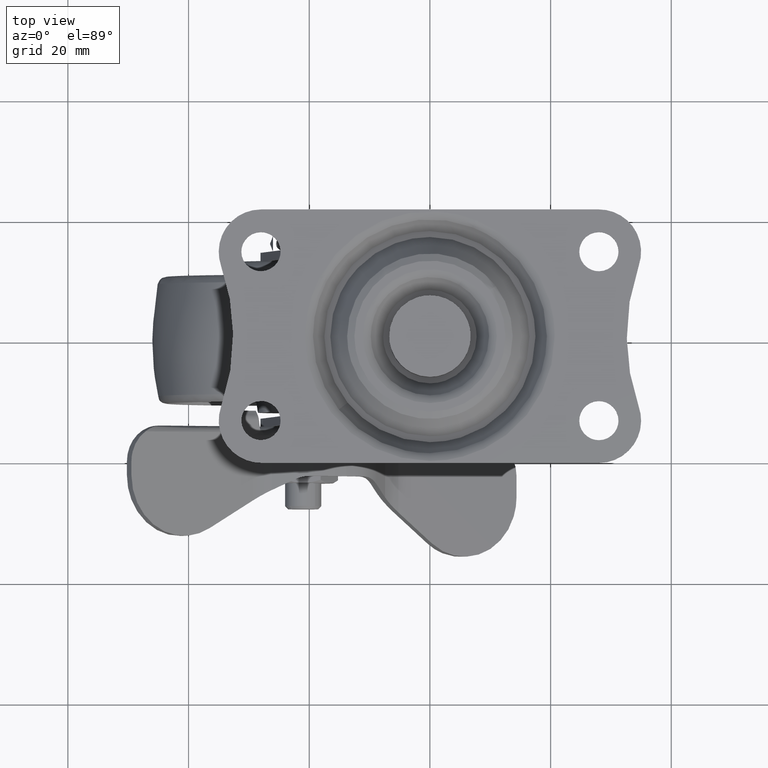
[diagram: clean part render]
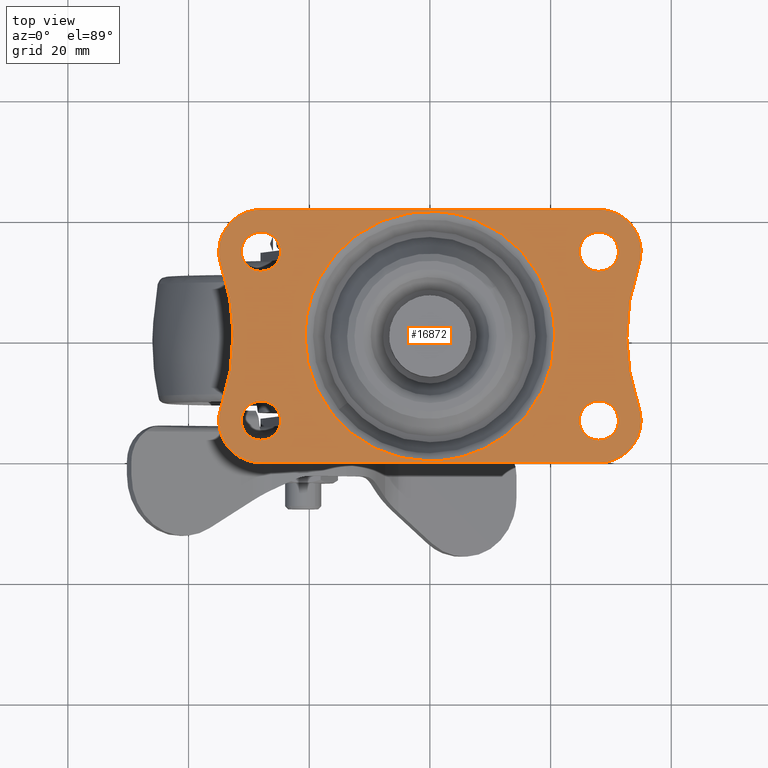
[diagram: same view with one face highlighted and labeled with its STEP entity id]
A machine part, top view. The second image highlights one B-rep face of the part: STEP entity #16872.
In plain terms, the highlighted face is a freeform B-spline surface patch.
Its self-contained STEP definition (entity closure, byte-faithful):
#10269=CARTESIAN_POINT('',(-30.098661757378149,16.481556130268299,1.499999999999946));
#10270=VERTEX_POINT('',#10269);
#10276=CARTESIAN_POINT('',(-31.249999800000001,14.0,1.499999999999946));
#10277=VERTEX_POINT('',#10276);
#10278=CARTESIAN_POINT('',(-30.098661757378149,16.481556130268299,1.499999999999946));
#10279=CARTESIAN_POINT('',(-30.289577182527641,16.320145751765470,1.499999999999946));
#10280=CARTESIAN_POINT('',(-30.674452516521139,15.909815945536870,1.499999999999945));
#10281=CARTESIAN_POINT('',(-31.126645519932929,15.073445750500831,1.499999999999943));
#10282=CARTESIAN_POINT('',(-31.250235581809321,14.382381212408839,1.499999999999948));
#10283=CARTESIAN_POINT('',(-31.249999800000001,14.0,1.499999999999946));
#10284=B_SPLINE_CURVE_WITH_KNOTS('',3,(#10278,#10279,#10280,#10281,#10282,#10283),.UNSPECIFIED.,.F.,.U.,(4,1,1,4),(0.000000054423420,0.750026321650373,1.676517444753924,2.823627086491031),.UNSPECIFIED.);
#10285=EDGE_CURVE('',#10270,#10277,#10284,.T.);
#10287=CARTESIAN_POINT('',(-27.999997940924779,10.750000200000651,1.499999999999946));
#10288=VERTEX_POINT('',#10287);
#10289=CARTESIAN_POINT('',(-31.249999800000001,14.0,1.499999999999946));
#10290=CARTESIAN_POINT('',(-31.250213411659860,13.654312593257419,1.499999999999945));
#10291=CARTESIAN_POINT('',(-31.168603753212889,13.149258355041161,1.499999999999949));
#10292=CARTESIAN_POINT('',(-30.893084863574039,12.484194795442169,1.499999999999946));
#10293=CARTESIAN_POINT('',(-30.578644659373520,11.987597425052529,1.499999999999945));
#10294=CARTESIAN_POINT('',(-30.136500792960529,11.523210283037390,1.499999999999947));
#10295=CARTESIAN_POINT('',(-29.612253616706070,11.153992291692401,1.499999999999946));
#10296=CARTESIAN_POINT('',(-28.903921136315340,10.839957306355981,1.499999999999946));
#10297=CARTESIAN_POINT('',(-28.345678394126999,10.749810213535600,1.499999999999946));
#10298=CARTESIAN_POINT('',(-27.999997940924779,10.750000200000651,1.499999999999946));
#10299=B_SPLINE_CURVE_WITH_KNOTS('',3,(#10289,#10290,#10291,#10292,#10293,#10294,#10295,#10296,#10297,#10298),.UNSPECIFIED.,.F.,.U.,(4,1,1,1,1,1,1,4),(0.000000087005333,1.036990326245083,1.515618312055995,2.153791714684053,2.791894715985495,3.430051564259903,4.068226777025982,5.105217015478970),.UNSPECIFIED.);
#10300=EDGE_CURVE('',#10277,#10288,#10299,.T.);
#10302=CARTESIAN_POINT('',(-24.750000199999999,14.0,1.499999999999946));
#10303=VERTEX_POINT('',#10302);
#10304=CARTESIAN_POINT('',(-27.999997940924779,10.750000200000651,1.499999999999946));
#10305=CARTESIAN_POINT('',(-27.654316308057751,10.749811401326840,1.499999999999947));
#10306=CARTESIAN_POINT('',(-27.096075418379851,10.839956518735020,1.499999999999944));
#10307=CARTESIAN_POINT('',(-26.387743192730952,11.153993074684790,1.499999999999951));
#10308=CARTESIAN_POINT('',(-25.863495983017959,11.523209752207400,1.499999999999941));
#10309=CARTESIAN_POINT('',(-25.421354199006210,11.987598052868011,1.499999999999949));
#10310=CARTESIAN_POINT('',(-25.106918210517598,12.484195698214609,1.499999999999946));
#10311=CARTESIAN_POINT('',(-24.831369771708101,13.149255147359760,1.499999999999953));
#10312=CARTESIAN_POINT('',(-24.749815336275020,13.654316176548811,1.499999999999938));
#10313=CARTESIAN_POINT('',(-24.750000199999999,14.0,1.499999999999946));
#10314=B_SPLINE_CURVE_WITH_KNOTS('',3,(#10304,#10305,#10306,#10307,#10308,#10309,#10310,#10311,#10312,#10313),.UNSPECIFIED.,.F.,.U.,(4,1,1,1,1,1,1,4),(0.000000089825204,1.036989856927361,1.675164779641794,2.313321336359128,2.951424046667823,3.589597158345651,4.068224926475018,5.105214694363415),.UNSPECIFIED.);
#10315=EDGE_CURVE('',#10288,#10303,#10314,.T.);
#10317=CARTESIAN_POINT('',(-25.642533912545861,16.237151985246431,1.499999999999946));
#10318=VERTEX_POINT('',#10317);
#10319=CARTESIAN_POINT('',(-24.750000199999999,14.0,1.499999999999946));
#10320=CARTESIAN_POINT('',(-24.749833953209141,14.334161639307720,1.499999999999947));
#10321=CARTESIAN_POINT('',(-24.834010635065660,14.873799582422521,1.499999999999947));
#10322=CARTESIAN_POINT('',(-25.158315578150809,15.633700887747439,1.499999999999944));
#10323=CARTESIAN_POINT('',(-25.447846849363120,16.032119372609241,1.499999999999949));
#10324=CARTESIAN_POINT('',(-25.642533912545861,16.237151985246431,1.499999999999946));
#10325=B_SPLINE_CURVE_WITH_KNOTS('',3,(#10319,#10320,#10321,#10322,#10323,#10324),.UNSPECIFIED.,.F.,.U.,(4,1,1,4),(0.000000029990939,1.002438273369224,1.619299687535740,2.467516888484169),.UNSPECIFIED.);
#10326=EDGE_CURVE('',#10303,#10318,#10325,.T.);
#10411=CARTESIAN_POINT('',(-28.000002059075200,17.249999799999340,1.499999999999946));
#10412=VERTEX_POINT('',#10411);
#10413=CARTESIAN_POINT('',(-25.642533912545861,16.237151985246431,1.499999999999946));
#10414=CARTESIAN_POINT('',(-25.850505642591930,16.456465313309121,1.499999999999945));
#10415=CARTESIAN_POINT('',(-26.219671023482139,16.749946695815439,1.499999999999948));
#10416=CARTESIAN_POINT('',(-27.011140322882799,17.138725367397349,1.499999999999945));
#10417=CARTESIAN_POINT('',(-27.587787815600748,17.250430855578468,1.499999999999943));
#10418=CARTESIAN_POINT('',(-28.000002059075200,17.249999799999340,1.499999999999946));
#10419=B_SPLINE_CURVE_WITH_KNOTS('',3,(#10413,#10414,#10415,#10416,#10417,#10418),.UNSPECIFIED.,.F.,.U.,(4,1,1,4),(0.000000023110451,0.906710101537733,1.401278173785362,2.637701047497904),.UNSPECIFIED.);
#10420=EDGE_CURVE('',#10318,#10412,#10419,.T.);
#10422=CARTESIAN_POINT('',(-28.000002059075200,17.249999799999340,1.499999999999946));
#10423=CARTESIAN_POINT('',(-28.213890449556139,17.250021659125569,1.499999999999944));
#10424=CARTESIAN_POINT('',(-28.665425187127092,17.205277153512942,1.499999999999949));
#10425=CARTESIAN_POINT('',(-29.394724745741989,16.974042725437720,1.499999999999944));
#10426=CARTESIAN_POINT('',(-29.862817362651999,16.681141635494171,1.499999999999946));
#10427=CARTESIAN_POINT('',(-30.098661757378149,16.481556130268299,1.499999999999946));
#10428=B_SPLINE_CURVE_WITH_KNOTS('',3,(#10422,#10423,#10424,#10425,#10426,#10427),.UNSPECIFIED.,.F.,.U.,(4,1,1,4),(0.000000032594691,0.641680232447581,1.354643003285986,2.281526419645199),.UNSPECIFIED.);
#10429=EDGE_CURVE('',#10412,#10270,#10428,.T.);
#10474=CARTESIAN_POINT('',(-30.098661757378139,-11.518451869731621,1.499999999999946));
#10475=VERTEX_POINT('',#10474);
#10481=CARTESIAN_POINT('',(-31.249999800000001,-14.000007999999919,1.499999999999946));
#10482=VERTEX_POINT('',#10481);
#10483=CARTESIAN_POINT('',(-30.098661757378139,-11.518451869731621,1.499999999999946));
#10484=CARTESIAN_POINT('',(-30.289586742369892,-11.679858687136569,1.499999999999946));
#10485=CARTESIAN_POINT('',(-30.633884611888639,-12.047021504023400,1.499999999999947));
#10486=CARTESIAN_POINT('',(-31.107006088051609,-12.867981485668230,1.499999999999945));
#10487=CARTESIAN_POINT('',(-31.250522754096970,-13.558719786274899,1.499999999999948));
#10488=CARTESIAN_POINT('',(-31.249999800000001,-14.000007999999919,1.499999999999946));
#10489=B_SPLINE_CURVE_WITH_KNOTS('',3,(#10483,#10484,#10485,#10486,#10487,#10488),.UNSPECIFIED.,.F.,.U.,(4,1,1,4),(0.000000054422037,0.750026321649219,1.500045668860254,2.823627086491030),.UNSPECIFIED.);
#10490=EDGE_CURVE('',#10475,#10482,#10489,.T.);
#10492=CARTESIAN_POINT('',(-27.999997940924779,-17.250007799999260,1.499999999999946));
#10493=VERTEX_POINT('',#10492);
#10494=CARTESIAN_POINT('',(-31.249999800000001,-14.000007999999919,1.499999999999946));
#10495=CARTESIAN_POINT('',(-31.250017637821919,-14.212709140315550,1.499999999999945));
#10496=CARTESIAN_POINT('',(-31.200276527679168,-14.717908306439011,1.499999999999948));
#10497=CARTESIAN_POINT('',(-30.929819252506022,-15.504521439635280,1.499999999999945));
#10498=CARTESIAN_POINT('',(-30.449946439427649,-16.185672235366290,1.499999999999949));
#10499=CARTESIAN_POINT('',(-29.802582655415300,-16.744204374123079,1.499999999999945));
#10500=CARTESIAN_POINT('',(-29.010292310982489,-17.142952453567862,1.499999999999949));
#10501=CARTESIAN_POINT('',(-28.345673533167162,-17.250184360931790,1.499999999999946));
#10502=CARTESIAN_POINT('',(-27.999997940924779,-17.250007799999260,1.499999999999946));
#10503=B_SPLINE_CURVE_WITH_KNOTS('',3,(#10494,#10495,#10496,#10497,#10498,#10499,#10500,#10501,#10502),.UNSPECIFIED.,.F.,.U.,(4,1,1,1,1,1,4),(0.000000087003577,0.638124657561202,1.515618312054764,2.472847482041339,3.110962390248583,4.068226777025538,5.105217015478995),.UNSPECIFIED.);
#10504=EDGE_CURVE('',#10482,#10493,#10503,.T.);
#10506=CARTESIAN_POINT('',(-24.750000199999999,-14.000007999999919,1.499999999999946));
#10507=VERTEX_POINT('',#10506);
#10508=CARTESIAN_POINT('',(-27.999997940924779,-17.250007799999260,1.499999999999946));
#10509=CARTESIAN_POINT('',(-27.654324779743519,-17.250174498512042,1.499999999999947));
#10510=CARTESIAN_POINT('',(-26.989694598158280,-17.142984238106791,1.499999999999944));
#10511=CARTESIAN_POINT('',(-26.197418206327910,-16.744184693498159,1.499999999999950));
#10512=CARTESIAN_POINT('',(-25.631028502236010,-16.255449287576859,1.499999999999938));
#10513=CARTESIAN_POINT('',(-25.236539733628341,-15.749970875931140,1.499999999999955));
#10514=CARTESIAN_POINT('',(-24.864054850948381,-15.010174619736050,1.499999999999941));
#10515=CARTESIAN_POINT('',(-24.749637220908362,-14.398907828496091,1.499999999999948));
#10516=CARTESIAN_POINT('',(-24.750000199999999,-14.000007999999919,1.499999999999946));
#10517=B_SPLINE_CURVE_WITH_KNOTS('',3,(#10508,#10509,#10510,#10511,#10512,#10513,#10514,#10515,#10516),.UNSPECIFIED.,.F.,.U.,(4,1,1,1,1,1,4),(0.000000089826888,1.036989856928397,1.994253808090371,2.632368425048630,3.270503607041905,3.908680750575577,5.105214694363415),.UNSPECIFIED.);
#10518=EDGE_CURVE('',#10493,#10507,#10517,.T.);
#10520=CARTESIAN_POINT('',(-25.642533912545851,-11.762856014753490,1.499999999999946));
#10521=VERTEX_POINT('',#10520);
#10522=CARTESIAN_POINT('',(-24.750000199999999,-14.000007999999919,1.499999999999946));
#10523=CARTESIAN_POINT('',(-24.749833579706259,-13.665847153486490,1.499999999999946));
#10524=CARTESIAN_POINT('',(-24.834011496223638,-13.126208212857231,1.499999999999947));
#10525=CARTESIAN_POINT('',(-25.158316419856121,-12.366306086907290,1.499999999999945));
#10526=CARTESIAN_POINT('',(-25.447846354275221,-11.967889320088570,1.499999999999945));
#10527=CARTESIAN_POINT('',(-25.642533912545851,-11.762856014753490,1.499999999999946));
#10528=B_SPLINE_CURVE_WITH_KNOTS('',3,(#10522,#10523,#10524,#10525,#10526,#10527),.UNSPECIFIED.,.F.,.U.,(4,1,1,4),(0.000000029991112,1.002438273369318,1.619299687535795,2.467516888484159),.UNSPECIFIED.);
#10529=EDGE_CURVE('',#10507,#10521,#10528,.T.);
#10613=CARTESIAN_POINT('',(-28.000002059075200,-10.750008200000570,1.499999999999946));
#10614=VERTEX_POINT('',#10613);
#10615=CARTESIAN_POINT('',(-25.642533912545851,-11.762856014753490,1.499999999999946));
#10616=CARTESIAN_POINT('',(-25.888274972804311,-11.503611668925210,1.499999999999947));
#10617=CARTESIAN_POINT('',(-26.355191532247090,-11.151478215741291,1.499999999999944));
#10618=CARTESIAN_POINT('',(-27.175803291080911,-10.823392204282669,1.499999999999947));
#10619=CARTESIAN_POINT('',(-27.697760787637989,-10.749886670758819,1.499999999999946));
#10620=CARTESIAN_POINT('',(-28.000002059075200,-10.750008200000570,1.499999999999946));
#10621=B_SPLINE_CURVE_WITH_KNOTS('',3,(#10615,#10616,#10617,#10618,#10619,#10620),.UNSPECIFIED.,.F.,.U.,(4,1,1,4),(0.000000023110160,1.071566752672289,1.730990969038262,2.637701047497915),.UNSPECIFIED.);
#10622=EDGE_CURVE('',#10521,#10614,#10621,.T.);
#10624=CARTESIAN_POINT('',(-28.000002059075200,-10.750008200000570,1.499999999999946));
#10625=CARTESIAN_POINT('',(-28.356512367590650,-10.749807794781020,1.499999999999947));
#10626=CARTESIAN_POINT('',(-29.116838494646679,-10.876441013781090,1.499999999999947));
#10627=CARTESIAN_POINT('',(-29.790384794726300,-11.257243185957790,1.499999999999944));
#10628=CARTESIAN_POINT('',(-30.098661757378139,-11.518451869731621,1.499999999999946));
#10629=B_SPLINE_CURVE_WITH_KNOTS('',3,(#10624,#10625,#10626,#10627,#10628),.UNSPECIFIED.,.F.,.U.,(4,1,4),(0.000000032594196,1.069474202612566,2.281526419645196),.UNSPECIFIED.);
#10630=EDGE_CURVE('',#10614,#10475,#10629,.T.);
#10676=CARTESIAN_POINT('',(25.901338242621851,16.481556130268299,1.499999999999946));
#10677=VERTEX_POINT('',#10676);
#10683=CARTESIAN_POINT('',(24.750000199999999,14.0,1.499999999999946));
#10684=VERTEX_POINT('',#10683);
#10685=CARTESIAN_POINT('',(25.901338242621851,16.481556130268299,1.499999999999946));
#10686=CARTESIAN_POINT('',(25.732890947688752,16.339125748626881,1.499999999999948));
#10687=CARTESIAN_POINT('',(25.384101602680250,15.977238748593500,1.499999999999944));
#10688=CARTESIAN_POINT('',(24.899064335299261,15.161457585811190,1.499999999999947));
#10689=CARTESIAN_POINT('',(24.749488781729770,14.441275193830140,1.499999999999951));
#10690=CARTESIAN_POINT('',(24.750000199999999,14.0,1.499999999999946));
#10691=B_SPLINE_CURVE_WITH_KNOTS('',3,(#10685,#10686,#10687,#10688,#10689,#10690),.UNSPECIFIED.,.F.,.U.,(4,1,1,4),(0.000000054425265,0.661787303231042,1.500045668861496,2.823627086491002),.UNSPECIFIED.);
#10692=EDGE_CURVE('',#10677,#10684,#10691,.T.);
#10694=CARTESIAN_POINT('',(28.000002059075229,10.750000200000651,1.499999999999946));
#10695=VERTEX_POINT('',#10694);
#10696=CARTESIAN_POINT('',(24.750000199999999,14.0,1.499999999999946));
#10697=CARTESIAN_POINT('',(24.749814634652282,13.654317282817670,1.499999999999943));
#10698=CARTESIAN_POINT('',(24.831371717560820,13.149252526906251,1.499999999999950));
#10699=CARTESIAN_POINT('',(25.106919946959991,12.484196991566661,1.499999999999943));
#10700=CARTESIAN_POINT('',(25.421355593252031,11.987596439260541,1.499999999999953));
#10701=CARTESIAN_POINT('',(25.863500868566248,11.523208894773919,1.499999999999939));
#10702=CARTESIAN_POINT('',(26.387745234496279,11.153991595141090,1.499999999999956));
#10703=CARTESIAN_POINT('',(27.096082682998318,10.839973795133380,1.499999999999931));
#10704=CARTESIAN_POINT('',(27.654318491992580,10.749790041966550,1.499999999999961));
#10705=CARTESIAN_POINT('',(28.000002059075229,10.750000200000651,1.499999999999946));
#10706=B_SPLINE_CURVE_WITH_KNOTS('',3,(#10696,#10697,#10698,#10699,#10700,#10701,#10702,#10703,#10704,#10705),.UNSPECIFIED.,.F.,.U.,(4,1,1,1,1,1,1,4),(0.000000087003586,1.036990326243745,1.515618312054816,2.153791714683071,2.791894715984703,3.430051564259262,4.068226777025538,5.105217015478991),.UNSPECIFIED.);
#10707=EDGE_CURVE('',#10684,#10695,#10706,.T.);
#10709=CARTESIAN_POINT('',(31.249999800000001,14.0,1.499999999999946));
#10710=VERTEX_POINT('',#10709);
#10711=CARTESIAN_POINT('',(28.000002059075229,10.750000200000651,1.499999999999946));
#10712=CARTESIAN_POINT('',(28.292490253884871,10.749894311593151,1.499999999999945));
#10713=CARTESIAN_POINT('',(28.744439184679131,10.811455669201081,1.499999999999948));
#10714=CARTESIAN_POINT('',(29.372020881011519,11.036015707032190,1.499999999999944));
#10715=CARTESIAN_POINT('',(29.883452179297830,11.325714217775900,1.499999999999950));
#10716=CARTESIAN_POINT('',(30.368980064776832,11.744547188681580,1.499999999999942));
#10717=CARTESIAN_POINT('',(30.763445777014041,12.250040285554549,1.499999999999949));
#10718=CARTESIAN_POINT('',(31.136002145696651,12.989820740568350,1.499999999999946));
#10719=CARTESIAN_POINT('',(31.250306908550911,13.601111880887700,1.499999999999942));
#10720=CARTESIAN_POINT('',(31.249999800000001,14.0,1.499999999999946));
#10721=B_SPLINE_CURVE_WITH_KNOTS('',3,(#10711,#10712,#10713,#10714,#10715,#10716,#10717,#10718,#10719,#10720),.UNSPECIFIED.,.F.,.U.,(4,1,1,1,1,1,1,4),(0.000000089830329,0.877442702312377,1.356073448634644,1.994253808092237,2.632368425049950,3.270503607042774,3.908680750576149,5.105214694363358),.UNSPECIFIED.);
#10722=EDGE_CURVE('',#10695,#10710,#10721,.T.);
#10724=CARTESIAN_POINT('',(30.357466087454139,16.237151985246431,1.499999999999946));
#10725=VERTEX_POINT('',#10724);
#10726=CARTESIAN_POINT('',(31.249999800000001,14.0,1.499999999999946));
#10727=CARTESIAN_POINT('',(31.250084539195001,14.282740975949700,1.499999999999946));
#10728=CARTESIAN_POINT('',(31.179117891424280,14.822450094263580,1.499999999999947));
#10729=CARTESIAN_POINT('',(30.872205679725269,15.591785712517749,1.499999999999945));
#10730=CARTESIAN_POINT('',(30.552147232649869,16.032112857169881,1.499999999999947));
#10731=CARTESIAN_POINT('',(30.357466087454139,16.237151985246431,1.499999999999946));
#10732=B_SPLINE_CURVE_WITH_KNOTS('',3,(#10726,#10727,#10728,#10729,#10730,#10731),.UNSPECIFIED.,.F.,.U.,(4,1,1,4),(0.000000029991059,0.848217230992957,1.619299687535702,2.467516888484174),.UNSPECIFIED.);
#10733=EDGE_CURVE('',#10710,#10725,#10732,.T.);
#10818=CARTESIAN_POINT('',(27.999997940924800,17.249999799999340,1.499999999999946));
#10819=VERTEX_POINT('',#10818);
#10820=CARTESIAN_POINT('',(30.357466087454139,16.237151985246431,1.499999999999946));
#10821=CARTESIAN_POINT('',(30.187283478992960,16.416557692140170,1.499999999999948));
#10822=CARTESIAN_POINT('',(29.826885855171820,16.718419557328492,1.499999999999945));
#10823=CARTESIAN_POINT('',(29.043811533424581,17.128145510447251,1.499999999999947));
#10824=CARTESIAN_POINT('',(28.412196045607470,17.250381443974849,1.499999999999948));
#10825=CARTESIAN_POINT('',(27.999997940924800,17.249999799999340,1.499999999999946));
#10826=B_SPLINE_CURVE_WITH_KNOTS('',3,(#10820,#10821,#10822,#10823,#10824,#10825),.UNSPECIFIED.,.F.,.U.,(4,1,1,4),(0.000000023109833,0.741853481165507,1.401278173785102,2.637701047497905),.UNSPECIFIED.);
#10827=EDGE_CURVE('',#10725,#10819,#10826,.T.);
#10829=CARTESIAN_POINT('',(27.999997940924800,17.249999799999340,1.499999999999946));
#10830=CARTESIAN_POINT('',(27.595938374590411,17.250352681417880,1.499999999999943));
#10831=CARTESIAN_POINT('',(26.835757496168469,17.106215745615948,1.499999999999953));
#10832=CARTESIAN_POINT('',(26.173413196248330,16.711934446585740,1.499999999999942));
#10833=CARTESIAN_POINT('',(25.901338242621851,16.481556130268299,1.499999999999946));
#10834=B_SPLINE_CURVE_WITH_KNOTS('',3,(#10829,#10830,#10831,#10832,#10833),.UNSPECIFIED.,.F.,.U.,(4,1,4),(0.000000032593972,1.212052249638575,2.281526419645199),.UNSPECIFIED.);
#10835=EDGE_CURVE('',#10819,#10677,#10834,.T.);
#10880=CARTESIAN_POINT('',(25.901338242621851,-11.518443869731700,1.499999999999946));
#10881=VERTEX_POINT('',#10880);
#10887=CARTESIAN_POINT('',(24.750000199999999,-14.0,1.499999999999946));
#10888=VERTEX_POINT('',#10887);
#10889=CARTESIAN_POINT('',(25.901338242621851,-11.518443869731700,1.499999999999946));
#10890=CARTESIAN_POINT('',(25.710426468057111,-11.679857676492681,1.499999999999947));
#10891=CARTESIAN_POINT('',(25.325542744272660,-12.090179366959189,1.499999999999945));
#10892=CARTESIAN_POINT('',(24.873358104567370,-12.926557798361699,1.499999999999947));
#10893=CARTESIAN_POINT('',(24.749763194312870,-13.617617573311700,1.499999999999952));
#10894=CARTESIAN_POINT('',(24.750000199999999,-14.0,1.499999999999946));
#10895=B_SPLINE_CURVE_WITH_KNOTS('',3,(#10889,#10890,#10891,#10892,#10893,#10894),.UNSPECIFIED.,.F.,.U.,(4,1,1,4),(0.000000054425260,0.750026321651484,1.676517444754611,2.823627086491002),.UNSPECIFIED.);
#10896=EDGE_CURVE('',#10881,#10888,#10895,.T.);
#10898=CARTESIAN_POINT('',(28.000002059075221,-17.249999799999340,1.499999999999946));
#10899=VERTEX_POINT('',#10898);
#10900=CARTESIAN_POINT('',(24.750000199999999,-14.0,1.499999999999946));
#10901=CARTESIAN_POINT('',(24.749791958722149,-14.345684850071789,1.499999999999943));
#10902=CARTESIAN_POINT('',(24.831390665489259,-14.850744866429221,1.499999999999949));
#10903=CARTESIAN_POINT('',(25.106917807160560,-15.515803399293389,1.499999999999946));
#10904=CARTESIAN_POINT('',(25.421354498522959,-16.012403143601990,1.499999999999946));
#10905=CARTESIAN_POINT('',(25.863499291462119,-16.476790075692481,1.499999999999947));
#10906=CARTESIAN_POINT('',(26.387746401903360,-16.846006792822081,1.499999999999946));
#10907=CARTESIAN_POINT('',(27.096079478522661,-17.160043858105499,1.499999999999949));
#10908=CARTESIAN_POINT('',(27.654320667846431,-17.250188977835599,1.499999999999943));
#10909=CARTESIAN_POINT('',(28.000002059075221,-17.249999799999340,1.499999999999946));
#10910=B_SPLINE_CURVE_WITH_KNOTS('',3,(#10900,#10901,#10902,#10903,#10904,#10905,#10906,#10907,#10908,#10909),.UNSPECIFIED.,.F.,.U.,(4,1,1,1,1,1,1,4),(0.000000087006509,1.036990326245892,1.515618312056583,2.153791714684384,2.791894715985712,3.430051564259979,4.068226777025934,5.105217015478963),.UNSPECIFIED.);
#10911=EDGE_CURVE('',#10888,#10899,#10910,.T.);
#10913=CARTESIAN_POINT('',(31.249999800000001,-14.0,1.499999999999946));
#10914=VERTEX_POINT('',#10913);
#10915=CARTESIAN_POINT('',(28.000002059075221,-17.249999799999340,1.499999999999946));
#10916=CARTESIAN_POINT('',(28.345682811140161,-17.250188281489450,1.499999999999947));
#10917=CARTESIAN_POINT('',(28.903925005743009,-17.160044447177331,1.499999999999945));
#10918=CARTESIAN_POINT('',(29.612256500735011,-16.846006922616649,1.499999999999948));
#10919=CARTESIAN_POINT('',(30.136504008842561,-16.476789703528251,1.499999999999942));
#10920=CARTESIAN_POINT('',(30.578647499048550,-16.012403164813751,1.499999999999948));
#10921=CARTESIAN_POINT('',(30.893085751330268,-15.515803308649430,1.499999999999946));
#10922=CARTESIAN_POINT('',(31.168606922731701,-14.850744165455369,1.499999999999947));
#10923=CARTESIAN_POINT('',(31.250212073293071,-14.345686109489829,1.499999999999950));
#10924=CARTESIAN_POINT('',(31.249999800000001,-14.0,1.499999999999946));
#10925=B_SPLINE_CURVE_WITH_KNOTS('',3,(#10915,#10916,#10917,#10918,#10919,#10920,#10921,#10922,#10923,#10924),.UNSPECIFIED.,.F.,.U.,(4,1,1,1,1,1,1,4),(0.000000089828886,1.036989856930174,1.675164779644283,2.313321336361192,2.951424046669371,3.589597158346702,4.068224926475708,5.105214694363362),.UNSPECIFIED.);
#10926=EDGE_CURVE('',#10899,#10914,#10925,.T.);
#10928=CARTESIAN_POINT('',(30.357466087454139,-11.762848014753571,1.499999999999946));
#10929=VERTEX_POINT('',#10928);
#10930=CARTESIAN_POINT('',(31.249999800000001,-14.0,1.499999999999946));
#10931=CARTESIAN_POINT('',(31.250092747106599,-13.717259015246841,1.499999999999949));
#10932=CARTESIAN_POINT('',(31.179107884565109,-13.177550200289780,1.499999999999943));
#10933=CARTESIAN_POINT('',(30.872210402397950,-12.408213867440921,1.499999999999943));
#10934=CARTESIAN_POINT('',(30.552146419183170,-11.967886526305270,1.499999999999952));
#10935=CARTESIAN_POINT('',(30.357466087454139,-11.762848014753571,1.499999999999946));
#10936=B_SPLINE_CURVE_WITH_KNOTS('',3,(#10930,#10931,#10932,#10933,#10934,#10935),.UNSPECIFIED.,.F.,.U.,(4,1,1,4),(0.000000029990773,0.848217230992820,1.619299687535705,2.467516888484170),.UNSPECIFIED.);
#10937=EDGE_CURVE('',#10914,#10929,#10936,.T.);
#11022=CARTESIAN_POINT('',(27.999997940924800,-10.750000200000651,1.499999999999946));
#11023=VERTEX_POINT('',#11022);
#11024=CARTESIAN_POINT('',(30.357466087454139,-11.762848014753571,1.499999999999946));
#11025=CARTESIAN_POINT('',(30.187284532561780,-11.583442247541580,1.499999999999948));
#11026=CARTESIAN_POINT('',(29.826887778290949,-11.281574293335360,1.499999999999943));
#11027=CARTESIAN_POINT('',(29.043802399810549,-10.871893065039711,1.499999999999947));
#11028=CARTESIAN_POINT('',(28.412204556243939,-10.749575509611860,1.499999999999946));
#11029=CARTESIAN_POINT('',(27.999997940924800,-10.750000200000651,1.499999999999946));
#11030=B_SPLINE_CURVE_WITH_KNOTS('',3,(#11024,#11025,#11026,#11027,#11028,#11029),.UNSPECIFIED.,.F.,.U.,(4,1,1,4),(0.000000023109790,0.741853481165542,1.401278173785123,2.637701047497907),.UNSPECIFIED.);
#11031=EDGE_CURVE('',#10929,#11023,#11030,.T.);
#11033=CARTESIAN_POINT('',(27.999997940924800,-10.750000200000651,1.499999999999946));
#11034=CARTESIAN_POINT('',(27.691025370212330,-10.749866194276001,1.499999999999945));
#11035=CARTESIAN_POINT('',(27.192037413049491,-10.821742065370071,1.499999999999944));
#11036=CARTESIAN_POINT('',(26.481080131177119,-11.099900499655501,1.499999999999949));
#11037=CARTESIAN_POINT('',(26.100915839502029,-11.349586883201990,1.499999999999943));
#11038=CARTESIAN_POINT('',(25.901338242621851,-11.518443869731700,1.499999999999946));
#11039=B_SPLINE_CURVE_WITH_KNOTS('',3,(#11033,#11034,#11035,#11036,#11037,#11038),.UNSPECIFIED.,.F.,.U.,(4,1,1,4),(0.000000032594606,0.926883448892903,1.497243989503951,2.281526419645199),.UNSPECIFIED.);
#11040=EDGE_CURVE('',#11023,#10881,#11039,.T.);
#14294=CARTESIAN_POINT('',(-18.263908632847151,9.743827607962242,1.500000000000000));
#14295=VERTEX_POINT('',#14294);
#14306=CARTESIAN_POINT('',(-20.700544322871998,0.0,1.500000000000000));
#14307=VERTEX_POINT('',#14306);
#14308=CARTESIAN_POINT('',(-20.700544322871998,0.0,1.500000000000000));
#14309=CARTESIAN_POINT('',(-20.701064082024430,1.743731989981250,1.500000000000000));
#14310=CARTESIAN_POINT('',(-20.270474768053020,5.125143824953496,1.499999999999999));
#14311=CARTESIAN_POINT('',(-19.035295670856019,8.298773248221169,1.500000000000000));
#14312=CARTESIAN_POINT('',(-18.263908632847151,9.743827607962242,1.500000000000000));
#14313=B_SPLINE_CURVE_WITH_KNOTS('',3,(#14308,#14309,#14310,#14311,#14312),.UNSPECIFIED.,.F.,.U.,(4,1,4),(8.025811E-009,5.231067112594253,10.145122549543320),.UNSPECIFIED.);
#14314=EDGE_CURVE('',#14307,#14295,#14313,.T.);
#14316=CARTESIAN_POINT('',(-0.000001671794055,-20.700544322871931,1.500000000000000));
#14317=VERTEX_POINT('',#14316);
#14318=CARTESIAN_POINT('',(-0.000001671794055,-20.700544322871931,1.500000000000000));
#14319=CARTESIAN_POINT('',(-1.524234049250517,-20.700858744049611,1.499999999999999));
#14320=CARTESIAN_POINT('',(-3.641044561889232,-20.465640177811341,1.500000000000001));
#14321=CARTESIAN_POINT('',(-6.545755319952297,-19.680874098321230,1.500000000000002));
#14322=CARTESIAN_POINT('',(-9.076184144620493,-18.695983294382440,1.500000000000003));
#14323=CARTESIAN_POINT('',(-11.577905097035609,-17.248186987330371,1.499999999999989));
#14324=CARTESIAN_POINT('',(-13.973176648384950,-15.355055079084551,1.500000000000024));
#14325=CARTESIAN_POINT('',(-15.806039853477669,-13.465120453770600,1.499999999999976));
#14326=CARTESIAN_POINT('',(-17.340705781367099,-11.382405795995920,1.500000000000020));
#14327=CARTESIAN_POINT('',(-18.742399466394961,-8.960606203877259,1.499999999999991));
#14328=CARTESIAN_POINT('',(-19.910733430614709,-6.039173769449032,1.499999999999966));
#14329=CARTESIAN_POINT('',(-20.578325657597329,-2.836712801335140,1.500000000000058));
#14330=CARTESIAN_POINT('',(-20.700558441954289,-0.846775596952474,1.499999999999965));
#14331=CARTESIAN_POINT('',(-20.700544322871998,0.0,1.500000000000000));
#14332=B_SPLINE_CURVE_WITH_KNOTS('',3,(#14318,#14319,#14320,#14321,#14322,#14323,#14324,#14325,#14326,#14327,#14328,#14329,#14330,#14331),.UNSPECIFIED.,.F.,.U.,(4,1,1,1,1,1,1,1,1,1,1,4),(0.000000080006181,4.572602251447560,6.350845665807999,9.018220042088583,12.701724098634999,14.988038667268070,18.163441869446618,20.576753333138338,22.736058267465872,26.546585005877489,29.976053975839040,32.516389051470199),.UNSPECIFIED.);
#14333=EDGE_CURVE('',#14317,#14307,#14332,.T.);
#14335=CARTESIAN_POINT('',(20.700544322871998,0.0,1.500000000000000));
#14336=VERTEX_POINT('',#14335);
#14337=CARTESIAN_POINT('',(20.700544322871998,0.0,1.500000000000000));
#14338=CARTESIAN_POINT('',(20.700570727253019,-0.889107239612214,1.499999999999997));
#14339=CARTESIAN_POINT('',(20.583075984670842,-2.709669896765116,1.500000000000007));
#14340=CARTESIAN_POINT('',(19.978839993565099,-5.747978794101379,1.499999999999997));
#14341=CARTESIAN_POINT('',(18.912216710386129,-8.617488718432833,1.499999999999988));
#14342=CARTESIAN_POINT('',(17.402377803136460,-11.321073874142380,1.500000000000027));
#14343=CARTESIAN_POINT('',(15.879067483734410,-13.361906915988680,1.499999999999991));
#14344=CARTESIAN_POINT('',(14.119360605404211,-15.198842276533229,1.499999999999996));
#14345=CARTESIAN_POINT('',(12.357647951932130,-16.662802662919709,1.500000000000005));
#14346=CARTESIAN_POINT('',(9.981419044421356,-18.219252092089850,1.499999999999990));
#14347=CARTESIAN_POINT('',(7.360224459978190,-19.439335630633941,1.500000000000024));
#14348=CARTESIAN_POINT('',(3.852739536069807,-20.444774820652238,1.499999999999950));
#14349=CARTESIAN_POINT('',(1.481888580285245,-20.700827513345988,1.500000000000058));
#14350=CARTESIAN_POINT('',(-0.000001671794055,-20.700544322871931,1.500000000000000));
#14351=B_SPLINE_CURVE_WITH_KNOTS('',3,(#14337,#14338,#14339,#14340,#14341,#14342,#14343,#14344,#14345,#14346,#14347,#14348,#14349,#14350),.UNSPECIFIED.,.F.,.U.,(4,1,1,1,1,1,1,1,1,1,1,4),(0.000000079829107,2.667324424815021,5.461721588551107,9.272254795095900,11.812603710580770,14.734026331660340,16.893274197286800,19.433619847729961,21.592909741712539,25.403436342339749,28.070795027432379,32.516390935974833),.UNSPECIFIED.);
#14352=EDGE_CURVE('',#14336,#14317,#14351,.T.);
#14354=CARTESIAN_POINT('',(7.569829234272550,19.266816559178160,1.500000000000000));
#14355=VERTEX_POINT('',#14354);
#14356=CARTESIAN_POINT('',(7.569829234272550,19.266816559178160,1.500000000000000));
#14357=CARTESIAN_POINT('',(8.770485750555688,18.795242244080288,1.500000000000001));
#14358=CARTESIAN_POINT('',(10.909648338894710,17.714174903228969,1.499999999999999));
#14359=CARTESIAN_POINT('',(13.451098104286711,15.818917487504599,1.500000000000000));
#14360=CARTESIAN_POINT('',(15.617451570513220,13.691713780597750,1.499999999999998));
#14361=CARTESIAN_POINT('',(17.153719675524211,11.688770130268731,1.500000000000002));
#14362=CARTESIAN_POINT('',(18.650075955635611,9.123844717378850,1.499999999999988));
#14363=CARTESIAN_POINT('',(19.677171752297149,6.675787606971508,1.500000000000003));
#14364=CARTESIAN_POINT('',(20.500910398538849,3.418273919301347,1.499999999999993));
#14365=CARTESIAN_POINT('',(20.700696665777009,1.289943359947890,1.500000000000003));
#14366=CARTESIAN_POINT('',(20.700544322871998,0.0,1.500000000000000));
#14367=B_SPLINE_CURVE_WITH_KNOTS('',3,(#14356,#14357,#14358,#14359,#14360,#14361,#14362,#14363,#14364,#14365,#14366),.UNSPECIFIED.,.F.,.U.,(4,1,1,1,1,1,1,1,4),(0.000000025759007,3.869817158129919,7.159173009420410,9.481074865857755,12.963868932319460,14.705310938330660,18.381643808455969,20.897036764938541,24.766846848339870),.UNSPECIFIED.);
#14368=EDGE_CURVE('',#14355,#14336,#14367,.T.);
#14402=CARTESIAN_POINT('',(-18.263908632847151,9.743827607962242,1.500000000000000));
#14403=CARTESIAN_POINT('',(-17.507326369717759,11.162766979832391,1.500000000000004));
#14404=CARTESIAN_POINT('',(-15.908560912344390,13.465721541376890,1.499999999999993));
#14405=CARTESIAN_POINT('',(-13.090418998445010,16.157203714601749,1.500000000000006));
#14406=CARTESIAN_POINT('',(-10.618398537618930,17.839510925279239,1.499999999999996));
#14407=CARTESIAN_POINT('',(-8.093446477489461,19.112104917219000,1.500000000000010));
#14408=CARTESIAN_POINT('',(-5.388678933280366,20.074448510197730,1.499999999999956));
#14409=CARTESIAN_POINT('',(-2.062359825877561,20.698671349886109,1.500000000000074));
#14410=CARTESIAN_POINT('',(1.087073694511604,20.745825357830778,1.499999999999966));
#14411=CARTESIAN_POINT('',(4.359047366257352,20.318120566417090,1.500000000000017));
#14412=CARTESIAN_POINT('',(6.365268017077665,19.740259321682071,1.499999999999981));
#14413=CARTESIAN_POINT('',(7.569829234272550,19.266816559178160,1.500000000000000));
#14414=B_SPLINE_CURVE_WITH_KNOTS('',3,(#14402,#14403,#14404,#14405,#14406,#14407,#14408,#14409,#14410,#14411,#14412,#14413),.UNSPECIFIED.,.F.,.U.,(4,1,1,1,1,1,1,1,1,4),(0.000000066688742,4.824026871599550,8.353838240821986,11.648308660899639,13.766195354412170,16.825292443070321,20.237446337565149,23.884905631527509,26.238111865203450,30.120864053566478),.UNSPECIFIED.);
#14415=EDGE_CURVE('',#14295,#14355,#14414,.T.);
#16409=CARTESIAN_POINT('',(-28.000006108652400,-20.999999999997350,1.499999999999946));
#16410=VERTEX_POINT('',#16409);
#16416=CARTESIAN_POINT('',(-34.609300374364153,-11.694120049033801,1.499999999999946));
#16417=VERTEX_POINT('',#16416);
#16418=CARTESIAN_POINT('',(-34.609300374364153,-11.694120049033801,1.499999999999946));
#16419=CARTESIAN_POINT('',(-34.781110537535248,-12.186288878265991,1.499999999999945));
#16420=CARTESIAN_POINT('',(-35.014004520196892,-13.209244245729030,1.499999999999948));
#16421=CARTESIAN_POINT('',(-35.014771726935187,-14.573080469190010,1.499999999999946));
#16422=CARTESIAN_POINT('',(-34.774012752816937,-15.910064265275590,1.499999999999942));
#16423=CARTESIAN_POINT('',(-34.260950118395577,-17.286320094198668,1.499999999999943));
#16424=CARTESIAN_POINT('',(-33.366539929774710,-18.586338413132239,1.499999999999945));
#16425=CARTESIAN_POINT('',(-32.391436848167672,-19.484827634245619,1.499999999999945));
#16426=CARTESIAN_POINT('',(-31.469303051776549,-20.110028230394409,1.499999999999938));
#16427=CARTESIAN_POINT('',(-30.525312041816719,-20.562355598135291,1.499999999999950));
#16428=CARTESIAN_POINT('',(-29.320604151314690,-20.912670153738400,1.499999999999939));
#16429=CARTESIAN_POINT('',(-28.486559790263129,-21.000074394534678,1.499999999999962));
#16430=CARTESIAN_POINT('',(-28.000006108652400,-20.999999999997350,1.499999999999946));
#16431=B_SPLINE_CURVE_WITH_KNOTS('',3,(#16418,#16419,#16420,#16421,#16422,#16423,#16424,#16425,#16426,#16427,#16428,#16429,#16430),.UNSPECIFIED.,.F.,.U.,(4,1,1,1,1,1,1,1,1,1,4),(0.000000138837072,1.563884633445019,3.127839431034818,4.066206403732327,5.630150122014694,7.506801390766154,8.757947838231779,9.592035127603484,10.843194681985951,11.885794414235381,13.345450857973450),.UNSPECIFIED.);
#16432=EDGE_CURVE('',#16417,#16410,#16431,.T.);
#16470=CARTESIAN_POINT('',(-34.611171447338400,11.699465691522059,1.499999999999946));
#16471=VERTEX_POINT('',#16470);
#16472=CARTESIAN_POINT('',(-34.609300374364153,-11.694120049033801,1.499999999999946));
#16473=CARTESIAN_POINT('',(-33.975238316025163,-9.877065653089211,1.499999999999948));
#16474=CARTESIAN_POINT('',(-32.987973698068608,-6.079249778791368,1.499999999999943));
#16475=CARTESIAN_POINT('',(-32.544393855384683,-1.115072334321729,1.499999999999952));
#16476=CARTESIAN_POINT('',(-32.711143534898987,3.107341276428874,1.499999999999932));
#16477=CARTESIAN_POINT('',(-33.250302632039663,7.111454476339028,1.499999999999961));
#16478=CARTESIAN_POINT('',(-34.017737183765888,9.999734536580590,1.499999999999951));
#16479=CARTESIAN_POINT('',(-34.611171447338400,11.699465691522059,1.499999999999946));
#16480=B_SPLINE_CURVE_WITH_KNOTS('',3,(#16472,#16473,#16474,#16475,#16476,#16477,#16478,#16479),.UNSPECIFIED.,.F.,.U.,(4,1,1,1,1,4),(0.000000012533388,5.773509626964763,11.733283352371350,14.899369188984290,18.437984423332260,23.839009813354171),.UNSPECIFIED.);
#16481=EDGE_CURVE('',#16417,#16471,#16480,.T.);
#16523=CARTESIAN_POINT('',(-28.0,21.0,1.499999999999946));
#16524=VERTEX_POINT('',#16523);
#16525=CARTESIAN_POINT('',(-28.0,21.0,1.499999999999946));
#16526=CARTESIAN_POINT('',(-28.764315979525740,21.000451821149380,1.499999999999945));
#16527=CARTESIAN_POINT('',(-29.910374781672321,20.810358716693440,1.499999999999952));
#16528=CARTESIAN_POINT('',(-31.285249405914819,20.213520280804801,1.499999999999941));
#16529=CARTESIAN_POINT('',(-32.226279806225662,19.615976066487509,1.499999999999953));
#16530=CARTESIAN_POINT('',(-33.246580488475743,18.717674495480718,1.499999999999933));
#16531=CARTESIAN_POINT('',(-34.137940060265649,17.502334896804939,1.499999999999958));
#16532=CARTESIAN_POINT('',(-34.809405629810080,15.890121626894411,1.499999999999944));
#16533=CARTESIAN_POINT('',(-35.049736726607662,14.366728409153991,1.499999999999935));
#16534=CARTESIAN_POINT('',(-34.951610304659802,12.905107221728541,1.499999999999974));
#16535=CARTESIAN_POINT('',(-34.748198967190568,12.093154366823621,1.499999999999916));
#16536=CARTESIAN_POINT('',(-34.611171447338400,11.699465691522059,1.499999999999946));
#16537=B_SPLINE_CURVE_WITH_KNOTS('',3,(#16525,#16526,#16527,#16528,#16529,#16530,#16531,#16532,#16533,#16534,#16535,#16536),.UNSPECIFIED.,.F.,.U.,(4,1,1,1,1,1,1,1,1,4),(0.000000138587584,2.292758652580313,3.439169500101622,4.481341549076806,5.627765632867297,7.503622117072487,8.962659338043515,10.838602382129411,12.089228533650340,13.339798824740759),.UNSPECIFIED.);
#16538=EDGE_CURVE('',#16524,#16471,#16537,.T.);
#16582=CARTESIAN_POINT('',(28.000003909537551,20.999999999998899,1.499999999999946));
#16583=VERTEX_POINT('',#16582);
#16589=CARTESIAN_POINT('',(34.612583487432701,11.703537585386620,1.499999999999946));
#16590=VERTEX_POINT('',#16589);
#16591=CARTESIAN_POINT('',(34.612583487432701,11.703537585386620,1.499999999999946));
#16592=CARTESIAN_POINT('',(34.760743845516750,12.129988937902750,1.499999999999951));
#16593=CARTESIAN_POINT('',(34.949452829836339,12.909949345414670,1.499999999999941));
#16594=CARTESIAN_POINT('',(35.039605642711741,14.265104250684530,1.499999999999947));
#16595=CARTESIAN_POINT('',(34.880003381932987,15.513998601101440,1.499999999999943));
#16596=CARTESIAN_POINT('',(34.419015834270454,16.902102470979258,1.499999999999945));
#16597=CARTESIAN_POINT('',(33.782748236270578,18.028848958528570,1.499999999999948));
#16598=CARTESIAN_POINT('',(32.891721012124279,19.054899272459590,1.499999999999947));
#16599=CARTESIAN_POINT('',(31.838405072798061,19.914903178970711,1.499999999999939));
#16600=CARTESIAN_POINT('',(30.595122860041322,20.556303008269850,1.499999999999959));
#16601=CARTESIAN_POINT('',(29.250160895369810,20.925354075228888,1.499999999999922));
#16602=CARTESIAN_POINT('',(28.416723153638220,21.000031325839029,1.499999999999975));
#16603=CARTESIAN_POINT('',(28.000003909537551,20.999999999998899,1.499999999999946));
#16604=B_SPLINE_CURVE_WITH_KNOTS('',3,(#16591,#16592,#16593,#16594,#16595,#16596,#16597,#16598,#16599,#16600,#16601,#16602,#16603),.UNSPECIFIED.,.F.,.U.,(4,1,1,1,1,1,1,1,1,1,4),(0.000000138360198,1.354369933716562,2.396206346717886,4.063169177453428,5.104996020366610,6.771898391251638,7.917907075043543,9.168128559188643,10.835095467430749,12.085316951578189,13.335482643455970),.UNSPECIFIED.);
#16605=EDGE_CURVE('',#16590,#16583,#16604,.T.);
#16643=CARTESIAN_POINT('',(34.609300893695803,-11.694117002700860,1.499999999999946));
#16644=VERTEX_POINT('',#16643);
#16645=CARTESIAN_POINT('',(34.612583487432701,11.703537585386620,1.499999999999946));
#16646=CARTESIAN_POINT('',(33.752373211253399,9.241579577463508,1.499999999999951));
#16647=CARTESIAN_POINT('',(32.872077259221847,5.405771034410578,1.499999999999939));
#16648=CARTESIAN_POINT('',(32.571597721710773,0.439929088604181,1.499999999999952));
#16649=CARTESIAN_POINT('',(32.725036983640422,-3.472743214529991,1.499999999999953));
#16650=CARTESIAN_POINT('',(33.327093286507107,-7.472331112648809,1.499999999999916));
#16651=CARTESIAN_POINT('',(34.138827903968242,-10.345723973503070,1.499999999999969));
#16652=CARTESIAN_POINT('',(34.609300893695803,-11.694117002700860,1.499999999999946));
#16653=B_SPLINE_CURVE_WITH_KNOTS('',3,(#16645,#16646,#16647,#16648,#16649,#16650,#16651,#16652),.UNSPECIFIED.,.F.,.U.,(4,1,1,1,1,4),(0.000000012537846,7.823596611982277,11.735404551023789,14.902062753917260,19.558975517908589,23.843319527633010),.UNSPECIFIED.);
#16654=EDGE_CURVE('',#16590,#16644,#16653,.T.);
#16697=CARTESIAN_POINT('',(28.0,-21.0,1.499999999999946));
#16698=VERTEX_POINT('',#16697);
#16699=CARTESIAN_POINT('',(28.0,-21.0,1.499999999999946));
#16700=CARTESIAN_POINT('',(28.590808129173752,-21.000139210576432,1.499999999999946));
#16701=CARTESIAN_POINT('',(29.807154160606949,-20.845175039549950,1.499999999999944));
#16702=CARTESIAN_POINT('',(31.203355139661902,-20.275805655844280,1.499999999999953));
#16703=CARTESIAN_POINT('',(32.280139001880343,-19.568698908394730,1.499999999999940));
#16704=CARTESIAN_POINT('',(33.248305928601603,-18.715841620384548,1.499999999999955));
#16705=CARTESIAN_POINT('',(34.056644902436560,-17.612768985433089,1.499999999999949));
#16706=CARTESIAN_POINT('',(34.572563053792578,-16.469137416288039,1.499999999999929));
#16707=CARTESIAN_POINT('',(34.891084622410432,-15.401542792912100,1.499999999999979));
#16708=CARTESIAN_POINT('',(35.040465445867852,-14.222902315713609,1.499999999999932));
#16709=CARTESIAN_POINT('',(34.950848535799317,-12.900008523165310,1.499999999999949));
#16710=CARTESIAN_POINT('',(34.746706276473397,-12.087861608507270,1.499999999999945));
#16711=CARTESIAN_POINT('',(34.609300893695803,-11.694117002700860,1.499999999999946));
#16712=B_SPLINE_CURVE_WITH_KNOTS('',3,(#16699,#16700,#16701,#16702,#16703,#16704,#16705,#16706,#16707,#16708,#16709,#16710,#16711),.UNSPECIFIED.,.F.,.U.,(4,1,1,1,1,1,1,1,1,1,4),(0.000000138839404,1.772424801005204,3.649155623647230,4.483243606412991,5.630154281378311,7.506806936510427,8.549408392923835,9.383525410204072,10.843202692529159,12.094359679851779,13.345460717061091),.UNSPECIFIED.);
#16713=EDGE_CURVE('',#16698,#16644,#16712,.T.);
#16792=CARTESIAN_POINT('',(-28.000006108652400,-20.999999999997350,1.499999999999946));
#16793=CARTESIAN_POINT('',(28.0,-21.0,1.499999999999946));
#16794=QUASI_UNIFORM_CURVE('',1,(#16792,#16793),.UNSPECIFIED.,.F.,.U.);
#16795=EDGE_CURVE('',#16410,#16698,#16794,.T.);
#16808=CARTESIAN_POINT('',(28.000003909537551,20.999999999998899,1.499999999999946));
#16809=CARTESIAN_POINT('',(-28.0,21.0,1.499999999999946));
#16810=QUASI_UNIFORM_CURVE('',1,(#16808,#16809),.UNSPECIFIED.,.F.,.U.);
#16811=EDGE_CURVE('',#16583,#16524,#16810,.T.);
#16818=CARTESIAN_POINT('',(-38.495414781673567,23.097899918595850,1.500000000000000));
#16819=CARTESIAN_POINT('',(38.495448427943607,23.097899918595850,1.500000000000000));
#16820=CARTESIAN_POINT('',(-38.495414781673567,-23.097901045123631,1.500000000000000));
#16821=CARTESIAN_POINT('',(38.495448427943607,-23.097901045123631,1.500000000000000));
#16822=B_SPLINE_SURFACE_WITH_KNOTS('',1,1,((#16818,#16820),(#16819,#16821)),.UNSPECIFIED.,.F.,.F.,.U.,(2,2),(2,2),(0.0,76.990863209617174),(0.0,46.195800963719478),.UNSPECIFIED.);
#16823=ORIENTED_EDGE('',*,*,#16811,.T.);
#16824=ORIENTED_EDGE('',*,*,#16538,.T.);
#16825=ORIENTED_EDGE('',*,*,#16481,.F.);
#16826=ORIENTED_EDGE('',*,*,#16432,.T.);
#16827=ORIENTED_EDGE('',*,*,#16795,.T.);
#16828=ORIENTED_EDGE('',*,*,#16713,.T.);
#16829=ORIENTED_EDGE('',*,*,#16654,.F.);
#16830=ORIENTED_EDGE('',*,*,#16605,.T.);
#16831=EDGE_LOOP('',(#16823,#16824,#16825,#16826,#16827,#16828,#16829,#16830));
#16832=FACE_OUTER_BOUND('',#16831,.T.);
#16833=ORIENTED_EDGE('',*,*,#14314,.T.);
#16834=ORIENTED_EDGE('',*,*,#14415,.T.);
#16835=ORIENTED_EDGE('',*,*,#14368,.T.);
#16836=ORIENTED_EDGE('',*,*,#14352,.T.);
#16837=ORIENTED_EDGE('',*,*,#14333,.T.);
#16838=EDGE_LOOP('',(#16833,#16834,#16835,#16836,#16837));
#16839=FACE_BOUND('',#16838,.T.);
#16840=ORIENTED_EDGE('',*,*,#10300,.F.);
#16841=ORIENTED_EDGE('',*,*,#10285,.F.);
#16842=ORIENTED_EDGE('',*,*,#10429,.F.);
#16843=ORIENTED_EDGE('',*,*,#10420,.F.);
#16844=ORIENTED_EDGE('',*,*,#10326,.F.);
#16845=ORIENTED_EDGE('',*,*,#10315,.F.);
#16846=EDGE_LOOP('',(#16840,#16841,#16842,#16843,#16844,#16845));
#16847=FACE_BOUND('',#16846,.T.);
#16848=ORIENTED_EDGE('',*,*,#10504,.F.);
#16849=ORIENTED_EDGE('',*,*,#10490,.F.);
#16850=ORIENTED_EDGE('',*,*,#10630,.F.);
#16851=ORIENTED_EDGE('',*,*,#10622,.F.);
#16852=ORIENTED_EDGE('',*,*,#10529,.F.);
#16853=ORIENTED_EDGE('',*,*,#10518,.F.);
#16854=EDGE_LOOP('',(#16848,#16849,#16850,#16851,#16852,#16853));
#16855=FACE_BOUND('',#16854,.T.);
#16856=ORIENTED_EDGE('',*,*,#10707,.F.);
#16857=ORIENTED_EDGE('',*,*,#10692,.F.);
#16858=ORIENTED_EDGE('',*,*,#10835,.F.);
#16859=ORIENTED_EDGE('',*,*,#10827,.F.);
#16860=ORIENTED_EDGE('',*,*,#10733,.F.);
#16861=ORIENTED_EDGE('',*,*,#10722,.F.);
#16862=EDGE_LOOP('',(#16856,#16857,#16858,#16859,#16860,#16861));
#16863=FACE_BOUND('',#16862,.T.);
#16864=ORIENTED_EDGE('',*,*,#10911,.F.);
#16865=ORIENTED_EDGE('',*,*,#10896,.F.);
#16866=ORIENTED_EDGE('',*,*,#11040,.F.);
#16867=ORIENTED_EDGE('',*,*,#11031,.F.);
#16868=ORIENTED_EDGE('',*,*,#10937,.F.);
#16869=ORIENTED_EDGE('',*,*,#10926,.F.);
#16870=EDGE_LOOP('',(#16864,#16865,#16866,#16867,#16868,#16869));
#16871=FACE_BOUND('',#16870,.T.);
#16872=ADVANCED_FACE('',(#16832,#16839,#16847,#16855,#16863,#16871),#16822,.F.);